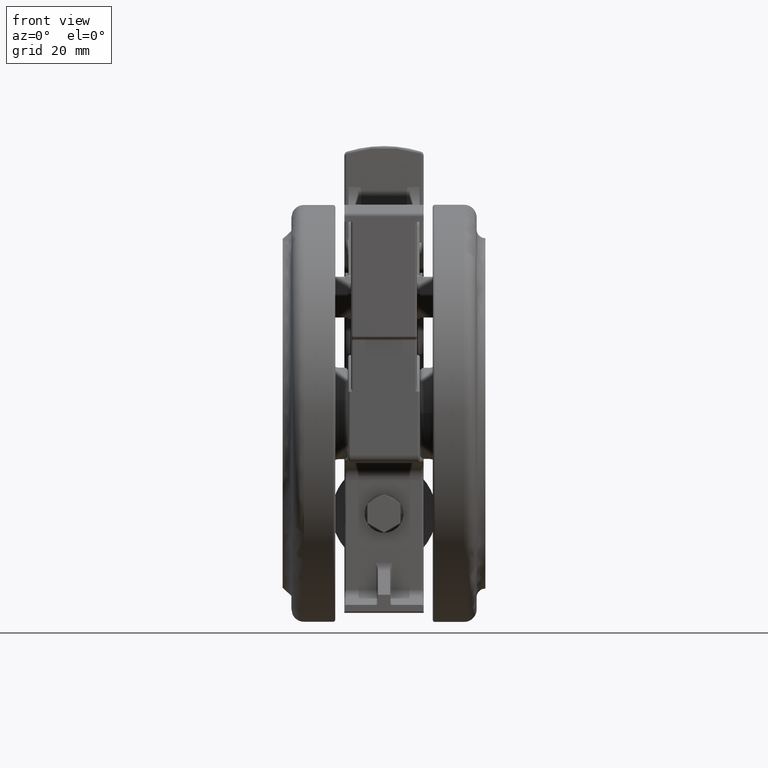
[diagram: clean part render]
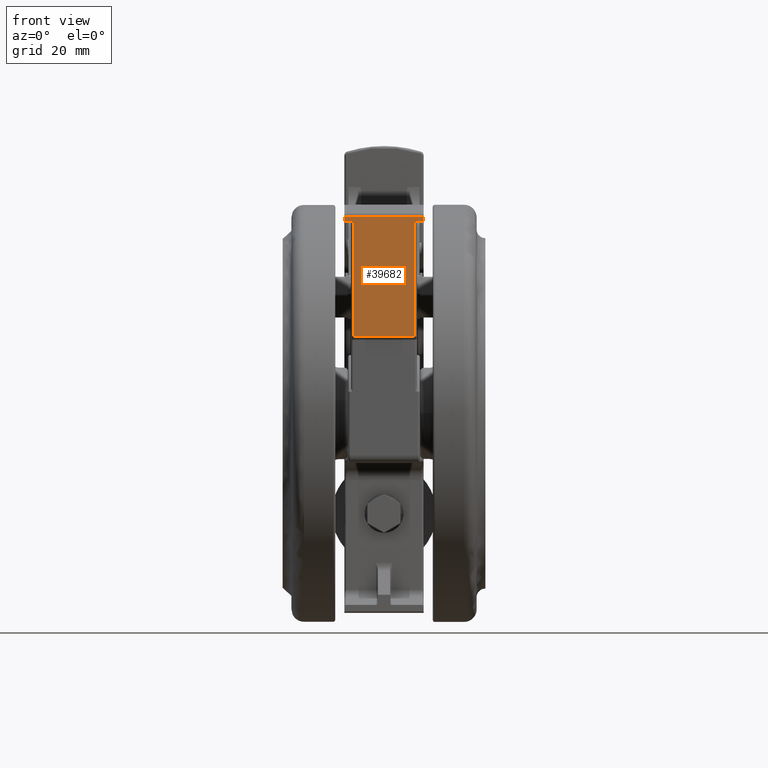
[diagram: same view with one face highlighted and labeled with its STEP entity id]
A machine part, front view. The second image highlights one B-rep face of the part: STEP entity #39682.
In plain terms, the highlighted planar face has unit normal (0, 1, -0).
Its self-contained STEP definition (entity closure, byte-faithful):
#1442 = VERTEX_POINT ( 'NONE', #30700 ) ;
#1571 = DIRECTION ( 'NONE',  ( -1.000000000000000000, -1.067883571208054300E-016, 2.126349141558171900E-017 ) ) ;
#1681 = VERTEX_POINT ( 'NONE', #28196 ) ;
#2312 = EDGE_CURVE ( 'NONE', #25015, #1442, #17609, .T. ) ;
#2355 = ORIENTED_EDGE ( 'NONE', *, *, #48272, .T. ) ;
#2617 = VERTEX_POINT ( 'NONE', #33548 ) ;
#3072 = VERTEX_POINT ( 'NONE', #6509 ) ;
#3598 = DIRECTION ( 'NONE',  ( -2.126349141558171200E-017, -1.779100357716780700E-016, -1.000000000000000000 ) ) ;
#6451 = ORIENTED_EDGE ( 'NONE', *, *, #34642, .T. ) ;
#6509 = CARTESIAN_POINT ( 'NONE',  ( 45.91296113299600300, 14.00000000000000400, -16.89999999999995600 ) ) ;
#7221 = DIRECTION ( 'NONE',  ( 1.000000000000000000, 1.067883571208054300E-016, -2.126349141558171900E-017 ) ) ;
#8594 = ORIENTED_EDGE ( 'NONE', *, *, #38506, .T. ) ;
#8689 = VECTOR ( 'NONE', #1571, 1000.000000000000000 ) ;
#9826 = LINE ( 'NONE', #43099, #38812 ) ;
#12087 = VECTOR ( 'NONE', #7221, 1000.000000000000000 ) ;
#12219 = DIRECTION ( 'NONE',  ( -1.000000000000000000, -1.067883571208054300E-016, 2.126349141558171900E-017 ) ) ;
#12666 = CARTESIAN_POINT ( 'NONE',  ( 48.00000000000000000, 14.00000000000000400, -14.79999999999995800 ) ) ;
#13153 = ORIENTED_EDGE ( 'NONE', *, *, #24944, .T. ) ;
#16005 = CARTESIAN_POINT ( 'NONE',  ( 48.00000000000000000, 14.00000000000000400, -14.79999999999995800 ) ) ;
#16577 = CARTESIAN_POINT ( 'NONE',  ( 48.00000000000000000, 14.00000000000000000, -31.69999999999995700 ) ) ;
#17461 = ORIENTED_EDGE ( 'NONE', *, *, #33483, .T. ) ;
#17494 = DIRECTION ( 'NONE',  ( -1.000000000000000000, -1.067883571208054300E-016, 2.126349141558171900E-017 ) ) ;
#17609 = LINE ( 'NONE', #20110, #36588 ) ;
#18709 = LINE ( 'NONE', #16577, #8689 ) ;
#19577 = CARTESIAN_POINT ( 'NONE',  ( 18.50000000000000000, 14.00000000000000000, -14.79999999999995600 ) ) ;
#20110 = CARTESIAN_POINT ( 'NONE',  ( 47.24404724407089900, 14.00000000000000400, -14.79999999999995800 ) ) ;
#21156 = VECTOR ( 'NONE', #3598, 1000.000000000000000 ) ;
#21917 = VERTEX_POINT ( 'NONE', #34245 ) ;
#22176 = LINE ( 'NONE', #33520, #12087 ) ;
#24084 = DIRECTION ( 'NONE',  ( 1.000000000000000000, 1.067883571208054300E-016, -2.126349141558171900E-017 ) ) ;
#24840 = EDGE_CURVE ( 'NONE', #1681, #40271, #43575, .T. ) ;
#24944 = EDGE_CURVE ( 'NONE', #2617, #21917, #36572, .T. ) ;
#25015 = VERTEX_POINT ( 'NONE', #46101 ) ;
#27699 = VECTOR ( 'NONE', #45936, 1000.000000000000000 ) ;
#27888 = EDGE_CURVE ( 'NONE', #25015, #35521, #43859, .T. ) ;
#28175 = DIRECTION ( 'NONE',  ( 2.126349141558171200E-017, 1.779100357716780700E-016, 1.000000000000000000 ) ) ;
#28196 = CARTESIAN_POINT ( 'NONE',  ( 45.91296113299600300, 14.00000000000000000, -31.69999999999995700 ) ) ;
#28945 = CARTESIAN_POINT ( 'NONE',  ( 48.00000000000000000, 14.00000000000000000, -33.79999999999995500 ) ) ;
#30097 = CARTESIAN_POINT ( 'NONE',  ( 45.91296113299600300, 14.00000000000000000, -32.19999999999996000 ) ) ;
#30700 = CARTESIAN_POINT ( 'NONE',  ( 47.24404724407089900, 14.00000000000000000, -33.79999999999995500 ) ) ;
#30839 = ORIENTED_EDGE ( 'NONE', *, *, #2312, .T. ) ;
#31194 = EDGE_LOOP ( 'NONE', ( #46254, #6451, #13153, #8594, #2355, #36981, #30839, #17461 ) ) ;
#31655 = CARTESIAN_POINT ( 'NONE',  ( 45.91296113299600300, 14.00000000000000000, -33.79999999999995500 ) ) ;
#33483 = EDGE_CURVE ( 'NONE', #1442, #40271, #39551, .T. ) ;
#33520 = CARTESIAN_POINT ( 'NONE',  ( 48.00000000000000000, 14.00000000000000400, -16.89999999999995600 ) ) ;
#33548 = CARTESIAN_POINT ( 'NONE',  ( 18.50000000000000000, 13.99999999999999600, -31.69999999999995700 ) ) ;
#33932 = FACE_OUTER_BOUND ( 'NONE', #31194, .T. ) ;
#33948 = VECTOR ( 'NONE', #12219, 1000.000000000000000 ) ;
#34245 = CARTESIAN_POINT ( 'NONE',  ( 18.50000000000000000, 14.00000000000000000, -16.89999999999995200 ) ) ;
#34642 = EDGE_CURVE ( 'NONE', #1681, #2617, #18709, .T. ) ;
#35521 = VERTEX_POINT ( 'NONE', #48351 ) ;
#36572 = LINE ( 'NONE', #19577, #27699 ) ;
#36588 = VECTOR ( 'NONE', #39152, 1000.000000000000000 ) ;
#36981 = ORIENTED_EDGE ( 'NONE', *, *, #27888, .F. ) ;
#38372 = VECTOR ( 'NONE', #17494, 1000.000000000000000 ) ;
#38506 = EDGE_CURVE ( 'NONE', #21917, #3072, #22176, .T. ) ;
#38812 = VECTOR ( 'NONE', #28175, 1000.000000000000000 ) ;
#39152 = DIRECTION ( 'NONE',  ( -2.126349141558171200E-017, -1.779100357716780700E-016, -1.000000000000000000 ) ) ;
#39551 = LINE ( 'NONE', #28945, #38372 ) ;
#39682 = ADVANCED_FACE ( 'NONE', ( #33932 ), #42849, .F. ) ;
#40271 = VERTEX_POINT ( 'NONE', #31655 ) ;
#42849 = PLANE ( 'NONE',  #48107 ) ;
#43099 = CARTESIAN_POINT ( 'NONE',  ( 45.91296113299600300, 14.00000000000000400, -16.39999999999995600 ) ) ;
#43575 = LINE ( 'NONE', #30097, #21156 ) ;
#43859 = LINE ( 'NONE', #16005, #33948 ) ;
#45936 = DIRECTION ( 'NONE',  ( 2.126349141558171200E-017, 1.779100357716780700E-016, 1.000000000000000000 ) ) ;
#46101 = CARTESIAN_POINT ( 'NONE',  ( 47.24404724407089900, 14.00000000000000400, -14.79999999999995800 ) ) ;
#46254 = ORIENTED_EDGE ( 'NONE', *, *, #24840, .F. ) ;
#46614 = DIRECTION ( 'NONE',  ( 1.067883571208054300E-016, -1.000000000000000000, 6.688773330916236600E-017 ) ) ;
#48107 = AXIS2_PLACEMENT_3D ( 'NONE', #12666, #46614, #24084 ) ;
#48272 = EDGE_CURVE ( 'NONE', #3072, #35521, #9826, .T. ) ;
#48351 = CARTESIAN_POINT ( 'NONE',  ( 45.91296113299600300, 14.00000000000000400, -14.79999999999995800 ) ) ;